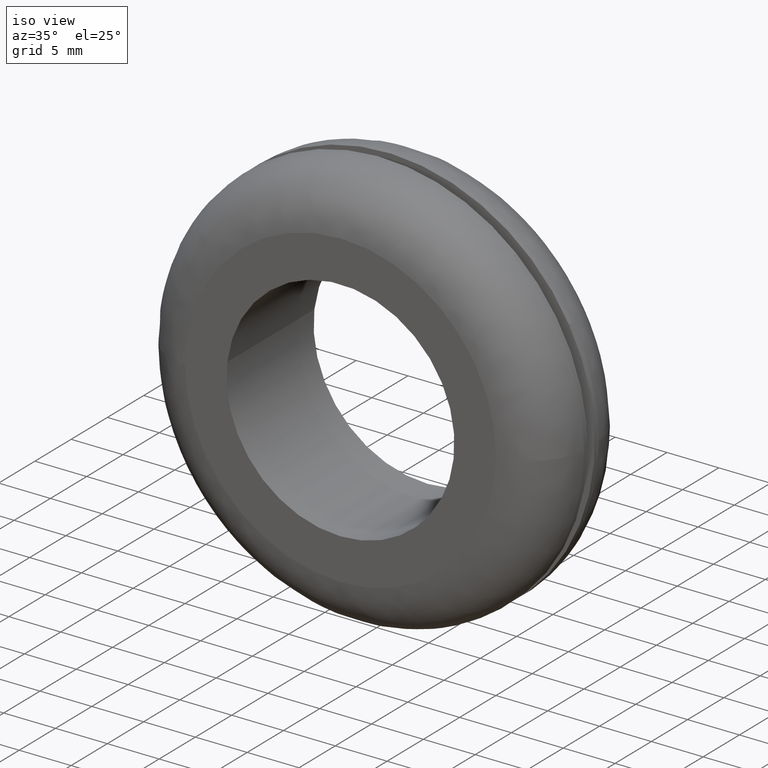
[diagram: clean part render]
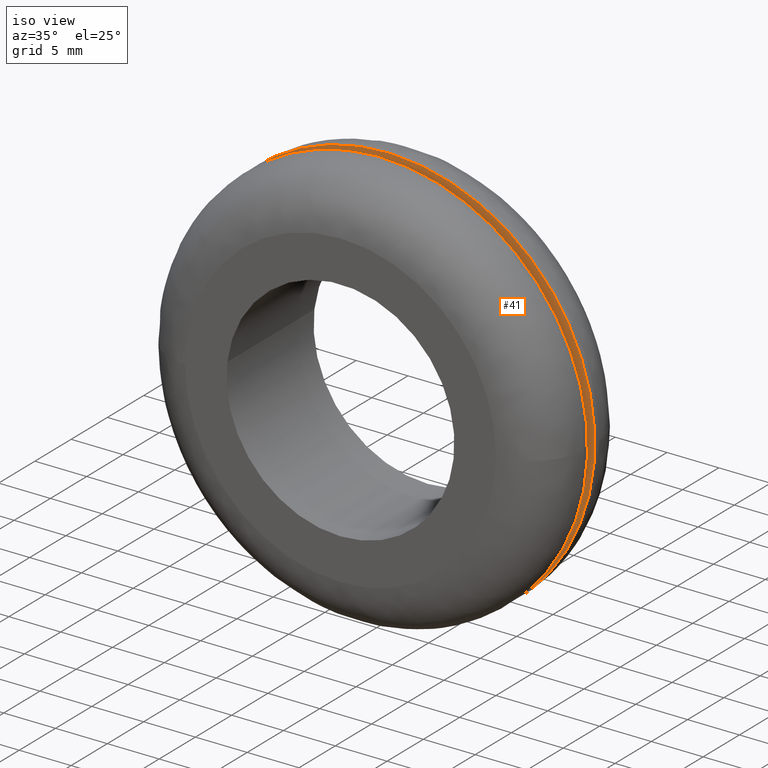
[diagram: same view with one face highlighted and labeled with its STEP entity id]
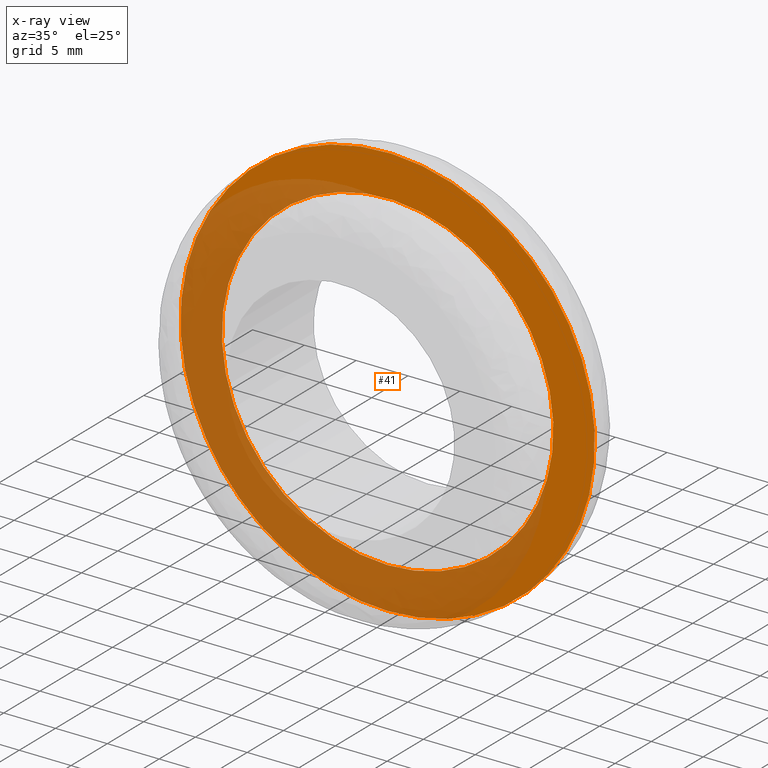
[diagram: x-ray of the same camera — body ghosted, the highlighted face saturated]
A machine part, iso view. The second image highlights one B-rep face of the part: STEP entity #41.
The next image is the same camera in x-ray: the body ghosted, the highlighted face saturated — about 53% of this face is hidden behind the body in this view.
In plain terms, the highlighted planar face has unit normal (0, 1, 0).
Its self-contained STEP definition (entity closure, byte-faithful):
#41=ADVANCED_FACE('',(#68,#69),#67,.F.);
#67=PLANE('',#229);
#68=FACE_OUTER_BOUND('',#230,.T.);
#69=FACE_BOUND('',#231,.T.);
#226=CARTESIAN_POINT('',(-4.15692193817E+001,6.50000000000E+000,-2.60000000000E+001));
#227=DIRECTION('',(0.00000000000E+000,1.00000000000E+000,0.00000000000E+000));
#228=DIRECTION('',(0.00000000000E+000,0.00000000000E+000,1.00000000000E+000));
#229=AXIS2_PLACEMENT_3D('',#226,#227,#228);
#230=EDGE_LOOP('',(#394,#395,#396));
#231=EDGE_LOOP('',(#397,#398,#399));
#394=ORIENTED_EDGE('',*,*,#494,.T.);
#395=ORIENTED_EDGE('',*,*,#495,.T.);
#396=ORIENTED_EDGE('',*,*,#496,.T.);
#397=ORIENTED_EDGE('',*,*,#497,.F.);
#398=ORIENTED_EDGE('',*,*,#498,.F.);
#399=ORIENTED_EDGE('',*,*,#499,.F.);
#494=EDGE_CURVE('',#580,#581,#582,.T.);
#495=EDGE_CURVE('',#581,#588,#589,.T.);
#496=EDGE_CURVE('',#588,#580,#595,.T.);
#497=EDGE_CURVE('',#601,#602,#603,.T.);
#498=EDGE_CURVE('',#609,#601,#610,.T.);
#499=EDGE_CURVE('',#602,#609,#616,.T.);
#580=VERTEX_POINT('',#906);
#581=VERTEX_POINT('',#907);
#582=CIRCLE('',#911,2.00000000000E+001);
#588=VERTEX_POINT('',#912);
#589=CIRCLE('',#916,2.00000000000E+001);
#595=CIRCLE('',#920,2.00000000000E+001);
#601=VERTEX_POINT('',#921);
#602=VERTEX_POINT('',#922);
#603=CIRCLE('',#926,1.60000000000E+001);
#609=VERTEX_POINT('',#927);
#610=CIRCLE('',#931,1.60000000000E+001);
#616=CIRCLE('',#935,1.60000000000E+001);
#906=CARTESIAN_POINT('',(-6.00192638645E-015,6.50000000000E+000,-2.00000000000E+001));
#907=CARTESIAN_POINT('',(1.74983608584E+001,6.50000000000E+000,9.68542034547E+000));
#908=CARTESIAN_POINT('',(-1.06581410364E-014,6.50000000000E+000,3.19744231092E-014));
#909=DIRECTION('',(-1.25607396695E-016,-1.00000000000E+000,3.10862446895E-016));
#910=DIRECTION('',(-5.32907051820E-016,-3.10862446895E-016,-1.00000000000E+000));
#911=AXIS2_PLACEMENT_3D('',#908,#909,#910);
#912=CARTESIAN_POINT('',(-1.74989274335E+001,6.50000000000E+000,-9.68439666045E+000));
#913=CARTESIAN_POINT('',(-1.06581410364E-014,6.50000000000E+000,3.19744231092E-014));
#914=DIRECTION('',(-1.25607396695E-016,-1.00000000000E+000,3.10862446895E-016));
#915=DIRECTION('',(-5.32907051820E-016,-3.10862446895E-016,-1.00000000000E+000));
#916=AXIS2_PLACEMENT_3D('',#913,#914,#915);
#917=CARTESIAN_POINT('',(-1.06581410364E-014,6.50000000000E+000,3.19744231092E-014));
#918=DIRECTION('',(-1.25607396695E-016,-1.00000000000E+000,3.10862446895E-016));
#919=DIRECTION('',(-5.32907051820E-016,-3.10862446895E-016,-1.00000000000E+000));
#920=AXIS2_PLACEMENT_3D('',#917,#918,#919);
#921=CARTESIAN_POINT('',(-1.58881524219E+001,6.50000000000E+000,1.88854775332E+000));
#922=CARTESIAN_POINT('',(3.10862446895E-015,6.50000000000E+000,-1.60000000000E+001));
#923=CARTESIAN_POINT('',(5.41255928965E-012,6.50000000000E+000,1.19060317161E-011));
#924=DIRECTION('',(4.32666361265E-016,-1.00000000000E+000,8.18201356079E-016));
#925=DIRECTION('',(-3.37715966303E-013,-8.18201356079E-016,-1.00000000000E+000));
#926=AXIS2_PLACEMENT_3D('',#923,#924,#925);
#927=CARTESIAN_POINT('',(1.58878257768E+001,6.50000000000E+000,-1.89129376017E+000));
#928=CARTESIAN_POINT('',(5.41255928965E-012,6.50000000000E+000,1.19060317161E-011));
#929=DIRECTION('',(4.32666361265E-016,-1.00000000000E+000,8.18201356079E-016));
#930=DIRECTION('',(-3.37715966303E-013,-8.18201356079E-016,-1.00000000000E+000));
#931=AXIS2_PLACEMENT_3D('',#928,#929,#930);
#932=CARTESIAN_POINT('',(5.41255928965E-012,6.50000000000E+000,1.19060317161E-011));
#933=DIRECTION('',(4.32666361265E-016,-1.00000000000E+000,8.18201356079E-016));
#934=DIRECTION('',(-3.37715966303E-013,-8.18201356079E-016,-1.00000000000E+000));
#935=AXIS2_PLACEMENT_3D('',#932,#933,#934);